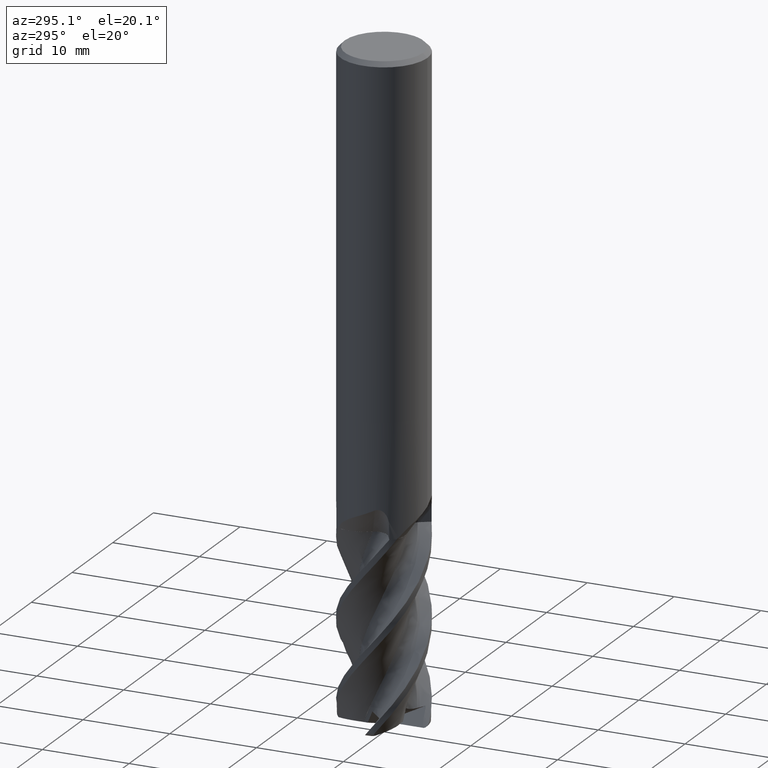
[diagram: clean part render]
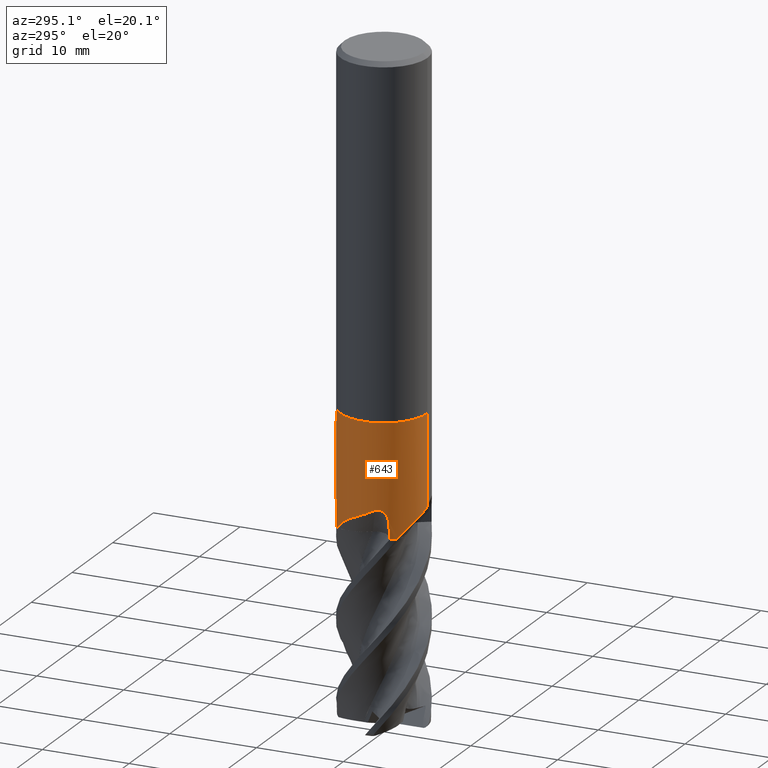
[diagram: same view with one face highlighted and labeled with its STEP entity id]
A machine part, auxiliary view. The second image highlights one B-rep face of the part: STEP entity #643.
In plain terms, the highlighted cylindrical surface (partial cylindrical patch) has radius 5 mm, axis along (-0, -0, 1).
Its self-contained STEP definition (entity closure, byte-faithful):
#555=EDGE_CURVE('',#1247,#1059,#1590,.T.);
#625=EDGE_CURVE('',#1161,#1137,#1667,.T.);
#643=ADVANCED_FACE('',(#1686),#1687,.T.);
#701=VERTEX_POINT('',#1750);
#705=EDGE_CURVE('',#985,#1351,#1754,.T.);
#737=EDGE_CURVE('',#1291,#907,#1789,.T.);
#789=VERTEX_POINT('',#1846);
#849=EDGE_CURVE('',#1137,#789,#1912,.T.);
#875=EDGE_CURVE('',#1095,#1247,#1940,.T.);
#907=VERTEX_POINT('',#1973);
#985=VERTEX_POINT('',#2056);
#1017=EDGE_CURVE('',#1501,#1099,#2091,.T.);
#1059=VERTEX_POINT('',#2137);
#1081=EDGE_CURVE('',#1059,#1501,#2161,.T.);
#1095=VERTEX_POINT('',#2178);
#1099=VERTEX_POINT('',#2182);
#1121=VERTEX_POINT('',#2207);
#1137=VERTEX_POINT('',#2224);
#1153=EDGE_CURVE('',#1161,#1099,#2241,.T.);
#1161=VERTEX_POINT('',#2250);
#1211=EDGE_CURVE('',#1095,#1121,#2304,.T.);
#1247=VERTEX_POINT('',#2344);
#1253=EDGE_CURVE('',#789,#1291,#2350,.T.);
#1265=EDGE_CURVE('',#701,#1121,#2364,.T.);
#1291=VERTEX_POINT('',#2395);
#1351=VERTEX_POINT('',#2459);
#1465=EDGE_CURVE('',#907,#985,#2587,.T.);
#1501=VERTEX_POINT('',#2625);
#1545=EDGE_CURVE('',#1351,#701,#2673,.T.);
#1590=B_SPLINE_CURVE_WITH_KNOTS('',3,(#2821,#2822,#2823,#2824,#2825,#2826,#2827,#2828,#2829,#2830),.UNSPECIFIED.,.F.,.F.,(4,2,2,2,4),(0.0,1.50417225078443,3.25372376127318,4.87123428510273,6.31669153548111),.UNSPECIFIED.);
#1667=B_SPLINE_CURVE_WITH_KNOTS('',3,(#3771,#3772,#3773,#3774),.UNSPECIFIED.,.F.,.F.,(4,4),(0.0,0.207010713968483),.UNSPECIFIED.);
#1686=FACE_OUTER_BOUND('',#3850,.T.);
#1687=CYLINDRICAL_SURFACE('',#3851,4.99995);
#1750=CARTESIAN_POINT('',(-2.58555588287669,4.27953277578543,-51.3543805685912));
#1754=B_SPLINE_CURVE_WITH_KNOTS('',3,(#4687,#4688,#4689,#4690,#4691,#4692,#4693,#4694,#4695,#4696),.UNSPECIFIED.,.F.,.F.,(4,2,2,2,4),(0.0,1.50417225078434,3.25372376127297,4.87123428510244,6.31669153548075),.UNSPECIFIED.);
#1789=CIRCLE('',#5145,4.99995);
#1846=CARTESIAN_POINT('',(2.24903882003373E-015,-4.99995,-50.3361821708165));
#1912=B_SPLINE_CURVE_WITH_KNOTS('',3,(#6120,#6121,#6122,#6123,#6124,#6125,#6126,#6127,#6128,#6129),.UNSPECIFIED.,.F.,.F.,(4,2,2,2,4),(0.0,1.50417225078424,3.25372376127269,4.87123428510197,6.31669153548033),.UNSPECIFIED.);
#1940=B_SPLINE_CURVE_WITH_KNOTS('',3,(#6216,#6217,#6218,#6219),.UNSPECIFIED.,.F.,.F.,(4,4),(0.0,0.207010713968052),.UNSPECIFIED.);
#1973=CARTESIAN_POINT('',(0.0,4.99995,-40.0));
#2056=CARTESIAN_POINT('',(3.35758745432331E-015,4.99994999999999,-50.3361821708165));
#2091=B_SPLINE_CURVE_WITH_KNOTS('',3,(#6983,#6984,#6985,#6986),.UNSPECIFIED.,.F.,.F.,(4,4),(0.0,1.64590909495742),.UNSPECIFIED.);
#2137=CARTESIAN_POINT('',(-4.85213570022123,-1.20676391607417,-49.7639396090505));
#2161=B_SPLINE_CURVE_WITH_KNOTS('',3,(#7613,#7614,#7615,#7616,#7617,#7618,#7619,#7620,#7621,#7622,#7623,#7624,#7625,#7626),.UNSPECIFIED.,.F.,.F.,(4,2,2,2,2,2,4),(0.0,0.368021234225706,0.690168312708371,1.04161434568776,1.5253330688402,2.03424446128394,2.56661132870107),.UNSPECIFIED.);
#2178=CARTESIAN_POINT('',(-3.2548671226,3.79543673596565,-53.0));
#2182=CARTESIAN_POINT('',(-4.26141470219513,-2.61530968308061,-53.0));
#2207=CARTESIAN_POINT('',(-2.61530968308066,4.2614147021951,-53.0000000000025));
#2224=CARTESIAN_POINT('',(-3.68886555604684,-3.37516976045817,-52.860161555969));
#2241=CIRCLE('',#7845,4.99995);
#2250=CARTESIAN_POINT('',(-3.79543673596563,-3.25486712260002,-53.0));
#2304=CIRCLE('',#8133,4.99995);
#2344=CARTESIAN_POINT('',(-3.37516976045826,3.68886555604675,-52.8601615559688));
#2350=LINE('',#8657,#8658);
#2364=B_SPLINE_CURVE_WITH_KNOTS('',3,(#8679,#8680,#8681,#8682),.UNSPECIFIED.,.F.,.F.,(4,4),(0.0,1.64590909495895),.UNSPECIFIED.);
#2395=CARTESIAN_POINT('',(6.12297053879419E-016,-4.99995,-40.0));
#2459=CARTESIAN_POINT('',(-1.20676391607417,4.85213570022123,-49.7639396090505));
#2587=LINE('',#10770,#10771);
#2625=CARTESIAN_POINT('',(-4.27953277578543,-2.58555588287669,-51.3543805685912));
#2673=B_SPLINE_CURVE_WITH_KNOTS('',3,(#11080,#11081,#11082,#11083,#11084,#11085,#11086,#11087,#11088,#11089,#11090,#11091,#11092,#11093),.UNSPECIFIED.,.F.,.F.,(4,2,2,2,2,2,4),(0.0,0.368021234225704,0.690168312708314,1.04161434568756,1.52533306883995,2.03424446128364,2.56661132870073),.UNSPECIFIED.);
#2821=CARTESIAN_POINT('',(-3.37516976103447,3.68886555551955,-52.8601615547171));
#2822=CARTESIAN_POINT('',(-3.63159215861916,3.45424894795985,-52.4987818570003));
#2823=CARTESIAN_POINT('',(-3.88174251827489,3.177858127679,-52.1860532834214));
#2824=CARTESIAN_POINT('',(-4.3844049921763,2.45004157588951,-51.57081190901));
#2825=CARTESIAN_POINT('',(-4.61114206998881,2.0017023972938,-51.2983203781811));
#2826=CARTESIAN_POINT('',(-4.91237378563406,1.04824569011505,-50.805641709478));
#2827=CARTESIAN_POINT('',(-4.99171244245108,0.567254798000495,-50.5916091113473));
#2828=CARTESIAN_POINT('',(-5.0061604557066,-0.359295679458299,-50.1744340301729));
#2829=CARTESIAN_POINT('',(-4.95551152328951,-0.79111217593836,-49.9784482232667));
#2830=CARTESIAN_POINT('',(-4.85213570022123,-1.20676391607418,-49.7639396090505));
#3771=CARTESIAN_POINT('',(-3.79543673596726,-3.25486712259813,-53.0000000000024));
#3772=CARTESIAN_POINT('',(-3.7633086768093,-3.2923310224719,-52.9517741057516));
#3773=CARTESIAN_POINT('',(-3.72621967937023,-3.33434386170832,-52.9010426995582));
#3774=CARTESIAN_POINT('',(-3.68886555604698,-3.37516976045801,-52.8601615559692));
#3850=EDGE_LOOP('',(#11224,#11225,#11226,#11227,#11228,#11229,#11230,#11231,#11232,#11233,#11234,#11235,#11236,#11237));
#3851=AXIS2_PLACEMENT_3D('',#11238,#11239,#11240);
#4687=CARTESIAN_POINT('',(3.68886555551955,3.37516976103447,-52.8601615547171));
#4688=CARTESIAN_POINT('',(3.45424894795986,3.63159215861915,-52.4987818570003));
#4689=CARTESIAN_POINT('',(3.17785812767901,3.88174251827489,-52.1860532834214));
#4690=CARTESIAN_POINT('',(2.4500415758895,4.3844049921763,-51.57081190901));
#4691=CARTESIAN_POINT('',(2.00170239729378,4.61114206998881,-51.2983203781811));
#4692=CARTESIAN_POINT('',(1.04824569011505,4.91237378563406,-50.805641709478));
#4693=CARTESIAN_POINT('',(0.567254798000494,4.99171244245108,-50.5916091113473));
#4694=CARTESIAN_POINT('',(-0.359295679458298,5.0061604557066,-50.1744340301729));
#4695=CARTESIAN_POINT('',(-0.79111217593836,4.95551152328951,-49.9784482232667));
#4696=CARTESIAN_POINT('',(-1.20676391607418,4.85213570022123,-49.7639396090505));
#5145=AXIS2_PLACEMENT_3D('',#11360,#11361,#11362);
#6120=CARTESIAN_POINT('',(-3.68886555551961,-3.3751697610344,-52.8601615547171));
#6121=CARTESIAN_POINT('',(-3.45424894795995,-3.63159215861907,-52.4987818570004));
#6122=CARTESIAN_POINT('',(-3.1778581276791,-3.88174251827482,-52.1860532834215));
#6123=CARTESIAN_POINT('',(-2.4500415758896,-4.38440499217625,-51.5708119090101));
#6124=CARTESIAN_POINT('',(-2.0017023972939,-4.61114206998876,-51.2983203781811));
#6125=CARTESIAN_POINT('',(-1.04824569011521,-4.91237378563402,-50.8056417094781));
#6126=CARTESIAN_POINT('',(-0.567254798000686,-4.99171244245109,-50.5916091113473));
#6127=CARTESIAN_POINT('',(0.359295679458403,-5.00616045570662,-50.1744340301728));
#6128=CARTESIAN_POINT('',(0.791112175938387,-4.95551152328949,-49.9784482232667));
#6129=CARTESIAN_POINT('',(1.20676391607416,-4.85213570022123,-49.7639396090505));
#6216=CARTESIAN_POINT('',(-3.25486712259811,3.79543673596726,-53.0000000000024));
#6217=CARTESIAN_POINT('',(-3.29233102247181,3.76330867680937,-52.9517741057517));
#6218=CARTESIAN_POINT('',(-3.33434386170834,3.72621967937022,-52.9010426995581));
#6219=CARTESIAN_POINT('',(-3.37516976045808,3.68886555604692,-52.8601615559691));
#6983=CARTESIAN_POINT('',(-4.27953277578545,-2.58555588287666,-51.3543805685912));
#6984=CARTESIAN_POINT('',(-4.27298067526449,-2.59640071864888,-51.9028706054202));
#6985=CARTESIAN_POINT('',(-4.26692516044155,-2.60633088109054,-52.4514625056959));
#6986=CARTESIAN_POINT('',(-4.2614147021951,-2.61530968308066,-53.0000000000026));
#7613=CARTESIAN_POINT('',(-4.85213570021954,-1.20676391608101,-49.7639396093091));
#7614=CARTESIAN_POINT('',(-4.82449522162802,-1.31790027933971,-49.7199673413001));
#7615=CARTESIAN_POINT('',(-4.79172105558408,-1.43314786527791,-49.6955569586522));
#7616=CARTESIAN_POINT('',(-4.7205286684951,-1.65154633527145,-49.7002196019696));
#7617=CARTESIAN_POINT('',(-4.68510272734027,-1.7490142147674,-49.722931558861));
#7618=CARTESIAN_POINT('',(-4.60913701618908,-1.94086222654667,-49.8106496245136));
#7619=CARTESIAN_POINT('',(-4.57025973097052,-2.02967160321348,-49.8772286943761));
#7620=CARTESIAN_POINT('',(-4.48444523330693,-2.21430740980157,-50.0669394984034));
#7621=CARTESIAN_POINT('',(-4.44021722000674,-2.29994967947244,-50.2014452251253));
#7622=CARTESIAN_POINT('',(-4.36624811639421,-2.43757963582861,-50.4942926135726));
#7623=CARTESIAN_POINT('',(-4.33634179904609,-2.48944400244533,-50.6573096045461));
#7624=CARTESIAN_POINT('',(-4.29384421056908,-2.56207983125277,-50.9962332595191));
#7625=CARTESIAN_POINT('',(-4.2816687762076,-2.58202044050752,-51.1755715110276));
#7626=CARTESIAN_POINT('',(-4.27953277583716,-2.58555588279108,-51.3543805685921));
#7845=AXIS2_PLACEMENT_3D('',#11792,#11793,#11794);
#8133=AXIS2_PLACEMENT_3D('',#11866,#11867,#11868);
#8657=CARTESIAN_POINT('',(6.12297053879419E-016,-4.99995,-46.5));
#8658=VECTOR('',#11913,1.0);
#8679=CARTESIAN_POINT('',(-2.58555588287666,4.27953277578545,-51.3543805685912));
#8680=CARTESIAN_POINT('',(-2.59640071864889,4.27298067526448,-51.9028706054207));
#8681=CARTESIAN_POINT('',(-2.60633088109054,4.26692516044154,-52.4514625056961));
#8682=CARTESIAN_POINT('',(-2.61530968308066,4.2614147021951,-53.0000000000025));
#10770=CARTESIAN_POINT('',(-6.12297053879419E-016,4.99995,-46.5));
#10771=VECTOR('',#12203,1.0);
#11080=CARTESIAN_POINT('',(-1.20676391608101,4.85213570021954,-49.7639396093091));
#11081=CARTESIAN_POINT('',(-1.31790027933971,4.82449522162802,-49.7199673413001));
#11082=CARTESIAN_POINT('',(-1.43314786527791,4.79172105558408,-49.6955569586522));
#11083=CARTESIAN_POINT('',(-1.65154633527143,4.7205286684951,-49.7002196019696));
#11084=CARTESIAN_POINT('',(-1.74901421476737,4.68510272734028,-49.722931558861));
#11085=CARTESIAN_POINT('',(-1.94086222654669,4.60913701618907,-49.8106496245136));
#11086=CARTESIAN_POINT('',(-2.0296716032135,4.57025973097051,-49.8772286943761));
#11087=CARTESIAN_POINT('',(-2.21430740980157,4.48444523330693,-50.0669394984034));
#11088=CARTESIAN_POINT('',(-2.29994967947244,4.44021722000674,-50.2014452251253));
#11089=CARTESIAN_POINT('',(-2.43757963582861,4.36624811639421,-50.4942926135726));
#11090=CARTESIAN_POINT('',(-2.48944400244533,4.33634179904609,-50.6573096045461));
#11091=CARTESIAN_POINT('',(-2.56207983125277,4.29384421056909,-50.9962332595191));
#11092=CARTESIAN_POINT('',(-2.58202044050752,4.2816687762076,-51.1755715110276));
#11093=CARTESIAN_POINT('',(-2.58555588279108,4.27953277583716,-51.3543805685921));
#11224=ORIENTED_EDGE('',*,*,#1465,.T.);
#11225=ORIENTED_EDGE('',*,*,#705,.T.);
#11226=ORIENTED_EDGE('',*,*,#1545,.T.);
#11227=ORIENTED_EDGE('',*,*,#1265,.T.);
#11228=ORIENTED_EDGE('',*,*,#1211,.F.);
#11229=ORIENTED_EDGE('',*,*,#875,.T.);
#11230=ORIENTED_EDGE('',*,*,#555,.T.);
#11231=ORIENTED_EDGE('',*,*,#1081,.T.);
#11232=ORIENTED_EDGE('',*,*,#1017,.T.);
#11233=ORIENTED_EDGE('',*,*,#1153,.F.);
#11234=ORIENTED_EDGE('',*,*,#625,.T.);
#11235=ORIENTED_EDGE('',*,*,#849,.T.);
#11236=ORIENTED_EDGE('',*,*,#1253,.T.);
#11237=ORIENTED_EDGE('',*,*,#737,.T.);
#11238=CARTESIAN_POINT('',(0.0,0.0,-46.5));
#11239=DIRECTION('',(-0.0,-0.0,1.0));
#11240=DIRECTION('',(0.0,1.0,0.0));
#11360=CARTESIAN_POINT('',(0.0,0.0,-40.0));
#11361=DIRECTION('',(0.0,0.0,-1.0));
#11362=DIRECTION('',(0.0,1.0,0.0));
#11792=CARTESIAN_POINT('',(0.0,0.0,-53.0));
#11793=DIRECTION('',(0.0,0.0,-1.0));
#11794=DIRECTION('',(0.0,1.0,0.0));
#11866=CARTESIAN_POINT('',(0.0,0.0,-53.0));
#11867=DIRECTION('',(0.0,0.0,-1.0));
#11868=DIRECTION('',(0.0,1.0,0.0));
#11913=DIRECTION('',(-0.0,-0.0,1.0));
#12203=DIRECTION('',(0.0,0.0,-1.0));